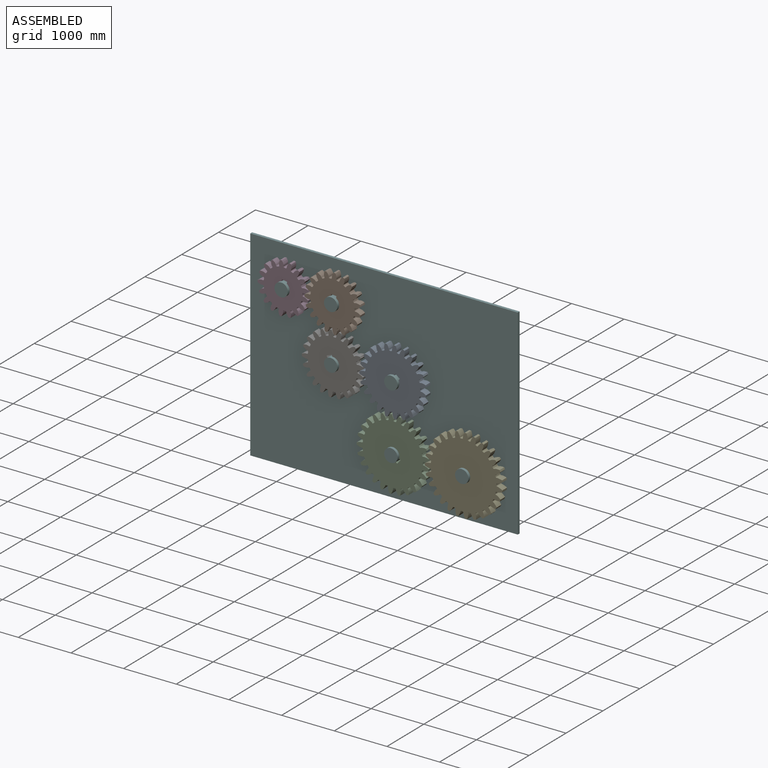
[diagram: assembled view]
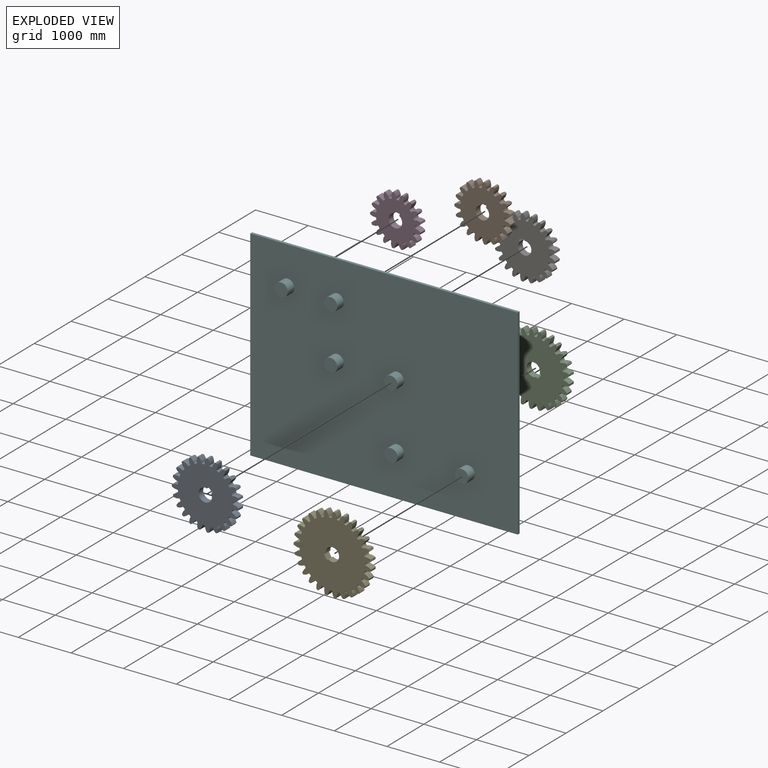
[diagram: exploded view]
GUIDED TOUR — MATED ASSEMBLY (Onshape document 5774c6cde4b05891d8816a00, AutoMate assembly 5774c6cde4b05891d8816a00_759ea697c75225c38b6fd69d_c1f17642f7555de73bb419a1_default)

This assembly has 7 components, labeled P0..P6 below (a component is one placed occurrence of a part; the same part can appear more than once), held together by 6 mates. A mate is a constraint between two components; its type names the relative motion it leaves free:
  REVOLUTE — leaves rotation about the listed axis free (a hinge).
Axis/direction vectors are unit vectors and 'through' points are millimeter coordinates, both in the assembly's world frame.

MATES
  1. REVOLUTE "Revolute 3": P5 <-> P4, axis (0.000, -1.000, 0.000) through (4372.71, -613.67, -982.83) mm
  2. REVOLUTE "Revolute 1": P5 <-> P1, axis (0.000, -1.000, 0.000) through (1883.51, -613.67, 1303.17) mm
  3. REVOLUTE "Revolute 2": P5 <-> P3, axis (0.000, -1.000, 0.000) through (943.71, -613.67, 1303.17) mm
  4. REVOLUTE "Revolute 4": P5 <-> P2, axis (0.000, -1.000, 0.000) through (3026.51, -613.67, -982.83) mm
  5. REVOLUTE "Revolute 5": P5 <-> P0, axis (0.000, -1.000, 0.000) through (3026.51, -613.67, 261.77) mm
  6. REVOLUTE "Revolute 6": P6 <-> P5, axis (0.000, 1.000, 0.000) through (1883.51, -613.67, 261.77) mm

ASSEMBLY ORDER
  1. P5 — the base component [order heuristic]
  2. P0 — core [order heuristic]
  3. P3 — core [order heuristic]
  4. P1 [order verified]
  5. P6 [order verified]
  6. P2 [order verified]
  7. P4 [order verified]
(P1, P2, P6 verified with a relaxed clearance tolerance: the source model stores slight part interference there.)
Order-tag legend:
  [order verified] — this step's position reverses a verified removal order: the component was checked to insert without passing through the ones already placed.
  [order heuristic] — the first 3 components form the assembly's core: parts whose collision-free extraction could not be verified, listed in mate-graph order.

Of the 7 components, 1 carries the full construction recipe — the FeatureScript program that regenerates the part's solid from scratch; the rest are supplied as boundary geometry only.
Each toured component is shown spotlighted twice — in the assembled view, then in the exploded view, where a leader line traces a displaced component back to its assembled socket (saturated green if recipe-attached, orange if geometry-only; every other component desaturated gray) — followed by its recipe or geometry summary and the mates that hold it.
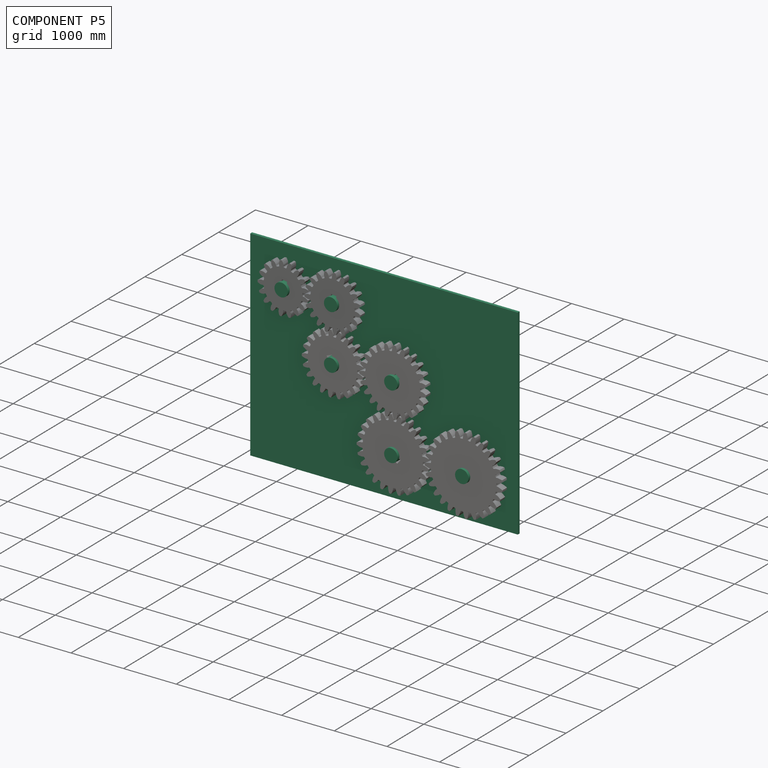
[diagram: component P5 — assembled]
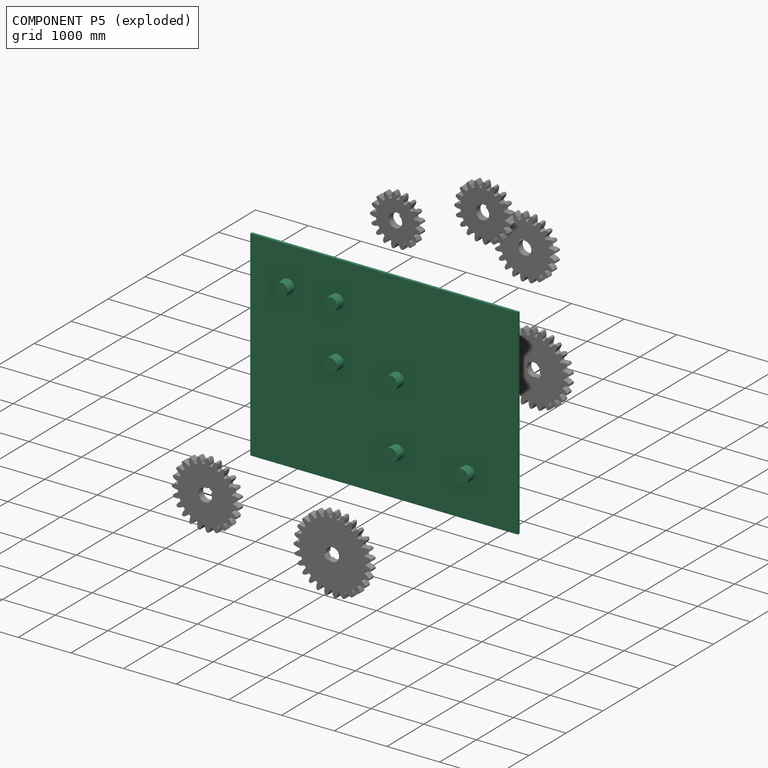
[diagram: component P5 — exploded]
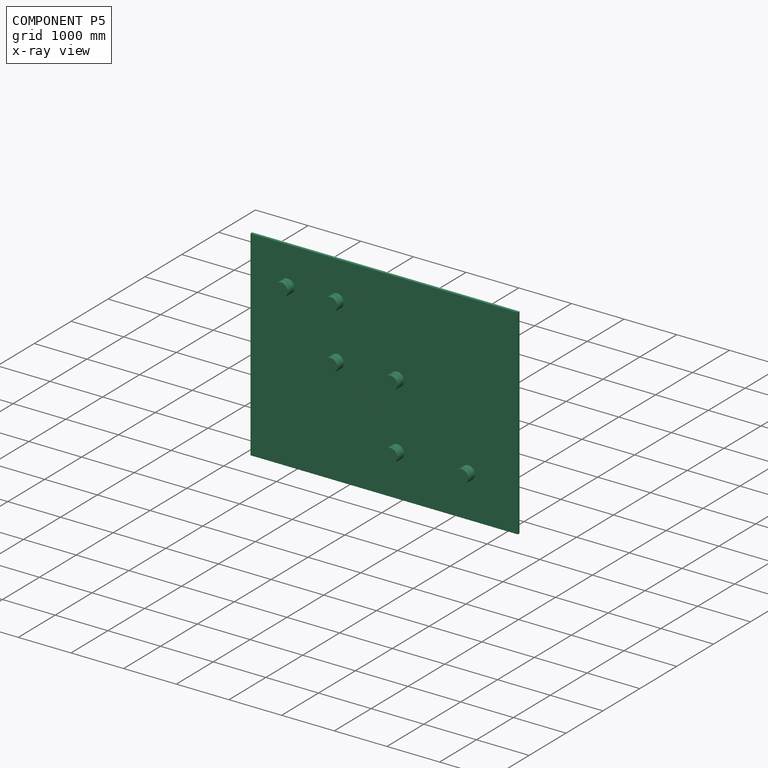
[diagram: component P5 — x-ray view]
COMPONENT P5 — recipe-attached (CADFS 00182782, mesh-verified: the recipe's output STEP matches this component's geometry to below the mesh-comparison resolution (tessellation chordal tolerance ~9.53 mm)).
Held by: REVOLUTE mate "Revolute 3" to P4; REVOLUTE mate "Revolute 1" to P1; REVOLUTE mate "Revolute 2" to P3; REVOLUTE mate "Revolute 4" to P2; REVOLUTE mate "Revolute 5" to P0; REVOLUTE mate "Revolute 6" to P6.
Construction recipe (FeatureScript — the CAD program that rebuilds this solid; sketch coordinates are in the units given by the * unit suffixes, e.g. mm):

FeatureScript 1511;
import(path : "onshape/std/geometry.fs", version : "1511.0");
import(path : "onshape/std/common.fs", version : "1511.0");
const mm = millimeter;
const VERTEX = EntityType.VERTEX;
const EDGE = EntityType.EDGE;
const FACE = EntityType.FACE;
const BODY = EntityType.BODY;
function v(x, y){return vector(x, y);}
function OD(order){return orderDisambiguation(order);}
function OSD(set){return originalSetDisambiguation(set);}
function TD(topology){return topologyDisambiguation(topology);}
function TDD(query){return trueDependencyDisambiguation(query);}
function sQuery(a, b, c) {return sketchEntityQuery(a, b, c);}

annotation { "Feature Type Name" : "Feature", "Feature Type Description" : "" }
export const myFeature = defineFeature(function(context is Context, id is Id, definition is map)
    precondition{}
    {
        {
            var Q0;
            Q0=qCreatedBy(makeId("Front.planeOp"),FACE);
            var sketch = newSketch(context, id + "F0", { "sketchPlane" : qUnion([Q0])});
            skLineSegment(sketch, "E0.bottom", {"start": v(-126.06, 3694.01) * mm, "end": v(4953.94, 3694.01) * mm});
            skLineSegment(sketch, "E0.top", {"start": v(-126.06, -115.99) * mm, "end": v(4953.94, -115.99) * mm});
            skLineSegment(sketch, "E0.left", {"start": v(-126.06, 3694.01) * mm, "end": v(-126.06, -115.99) * mm});
            skLineSegment(sketch, "E0.right", {"start": v(4953.94, 3694.01) * mm, "end": v(4953.94, -115.99) * mm});
            skSolve(sketch);
        }
        {
            var Q0;
            Q0=makeQuery(id+"F0.imprint","IMPRINT",FACE,{"disambiguationData":[TD([[makeQuery(id+"F0.imprint","IMPRINT",EDGE,{"derivedFrom":sQuery(id+"F0.wireOp",EDGE,"E0.bottom")}),-1.0]])]});
            extrude(context, id + "F1", {"entities" : qUnion([Q0]), "depth" : 50.8 * mm});
        }
        {
            var Q0;
            Q0=makeQuery(id+"F1.opExtrude","CAP_FACE",FACE,{"disambiguationData":[OSD([sQuery(id+"F0.wireOp",EDGE,"E0.bottom"),sQuery(id+"F0.wireOp",EDGE,"E0.top"),sQuery(id+"F0.wireOp",EDGE,"E0.left"),sQuery(id+"F0.wireOp",EDGE,"E0.right")])],"isStart":false});
            var sketch = newSketch(context, id + "F2", { "sketchPlane" : qUnion([Q0])});
            skCircle(sketch, "E1", {"center": v(585.14, 2982.81) * mm, "radius": 127 * mm});
            skCircle(sketch, "E2", {"center": v(1524.94, 2982.81) * mm, "radius": 127 * mm});
            skCircle(sketch, "E3", {"center": v(1524.94, 1941.41) * mm, "radius": 127 * mm});
            skCircle(sketch, "E4", {"center": v(2667.94, 1941.41) * mm, "radius": 127 * mm});
            skCircle(sketch, "E5", {"center": v(2667.94, 696.81) * mm, "radius": 127 * mm});
            skCircle(sketch, "E6", {"center": v(4014.14, 696.81) * mm, "radius": 127 * mm});
            skSolve(sketch);
        }
        {
            var Q0;
            Q0 = qSketchRegion(id + "F2", true);
            extrude(context, id + "F3", {"entities" : qUnion([Q0]), "operationType" : NewBodyOperationType.ADD, "depth" : 177.8 * mm});
        }
    });
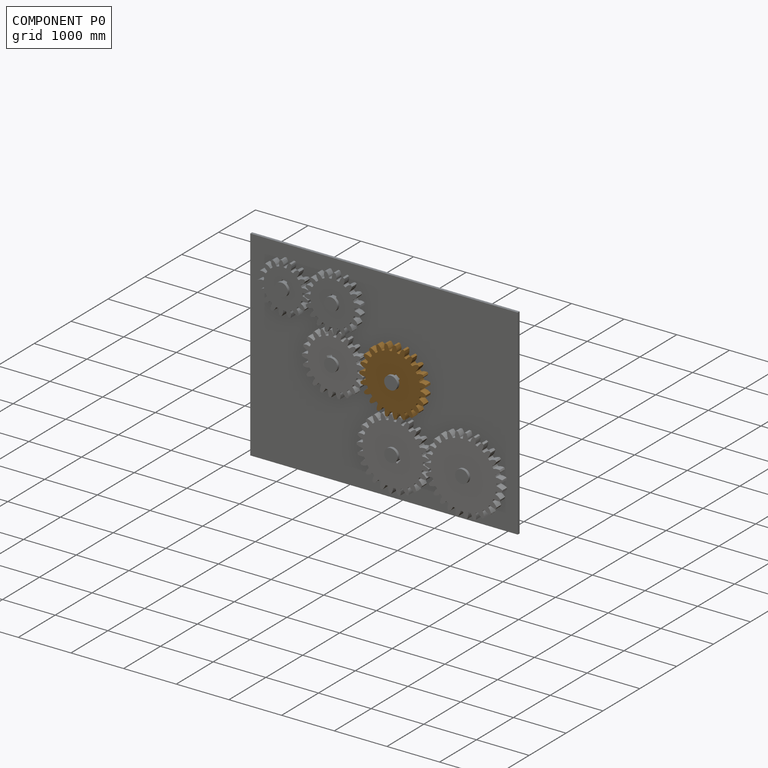
[diagram: component P0 — assembled]
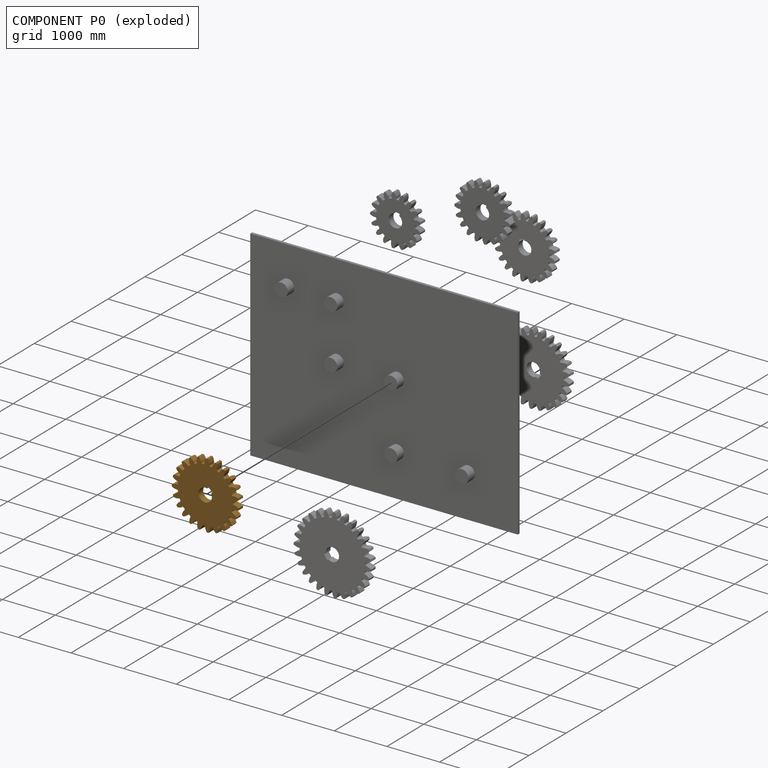
[diagram: component P0 — exploded]
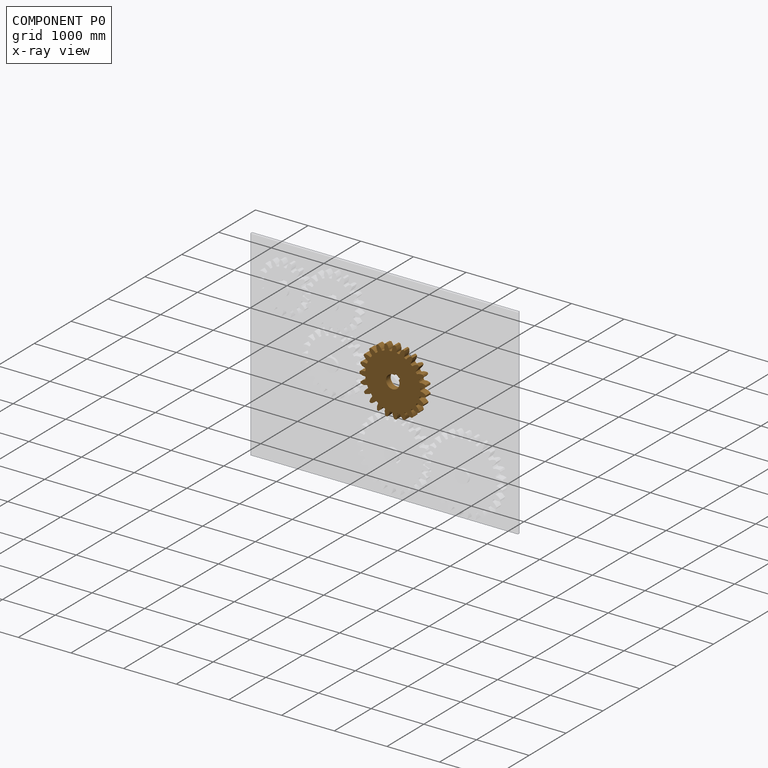
[diagram: component P0 — x-ray view]
COMPONENT P0 — geometry summary (no construction recipe available for this part):
  bounding box: 1269.5 x 1266.5 x 127.0 mm
  B-rep topology: 1 solid, 144 faces, 852 edges
  volume: 127045199 mm^3 (62% of its bounding box)
  symmetry: mirror-symmetric across its y mid-plane
Held by: REVOLUTE mate "Revolute 5" to P5.
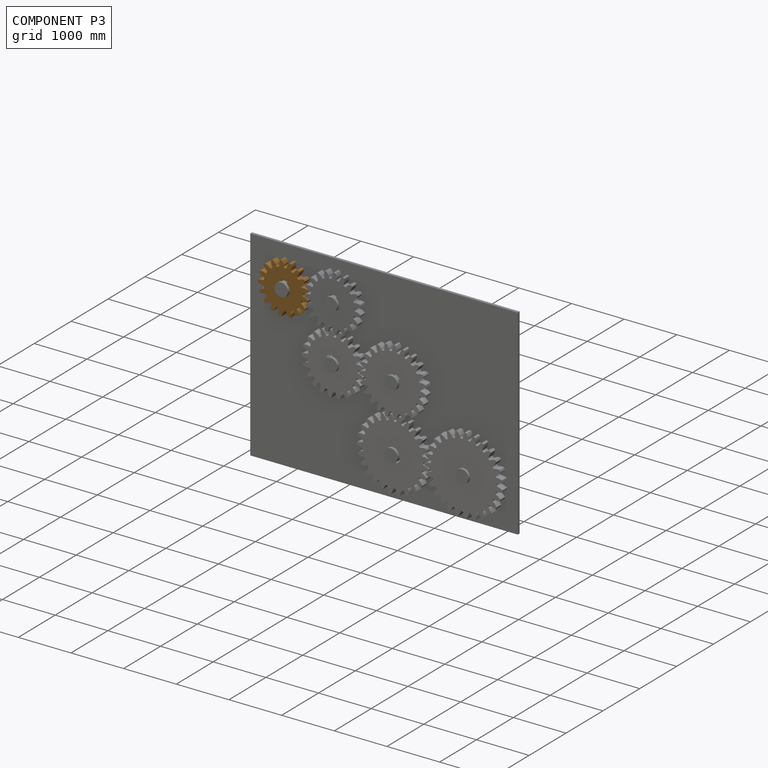
[diagram: component P3 — assembled]
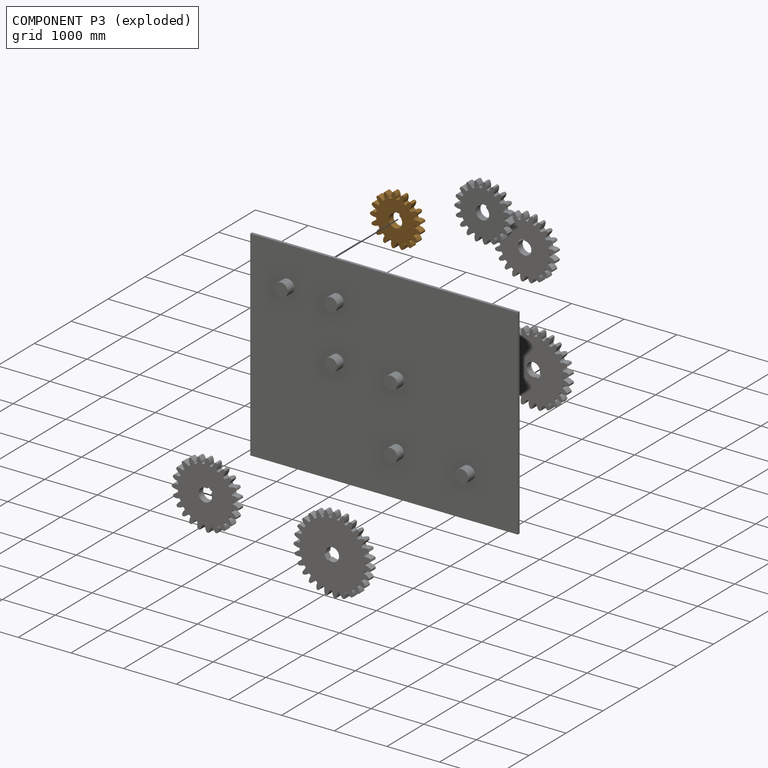
[diagram: component P3 — exploded]
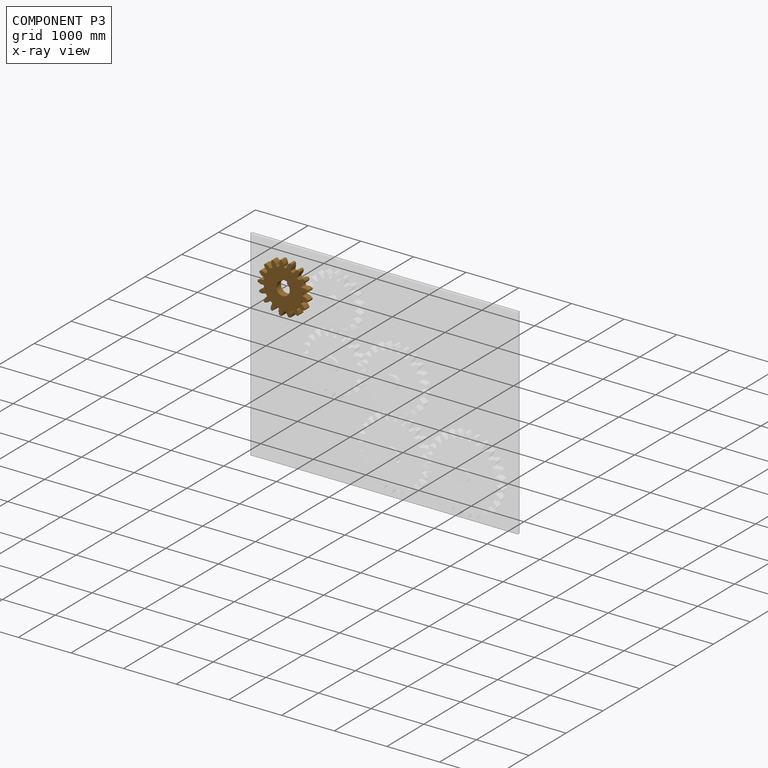
[diagram: component P3 — x-ray view]
COMPONENT P3 — geometry summary (no construction recipe available for this part):
  bounding box: 964.8 x 960.7 x 127.0 mm
  B-rep topology: 1 solid, 108 faces, 636 edges
  volume: 65678807 mm^3 (56% of its bounding box)
  symmetry: mirror-symmetric across its y mid-plane
Held by: REVOLUTE mate "Revolute 2" to P5.
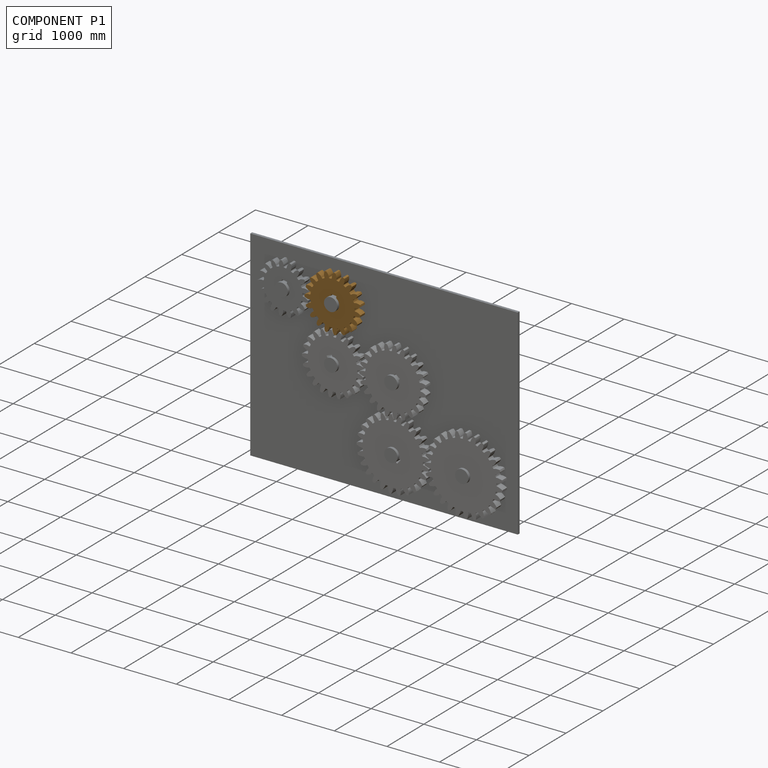
[diagram: component P1 — assembled]
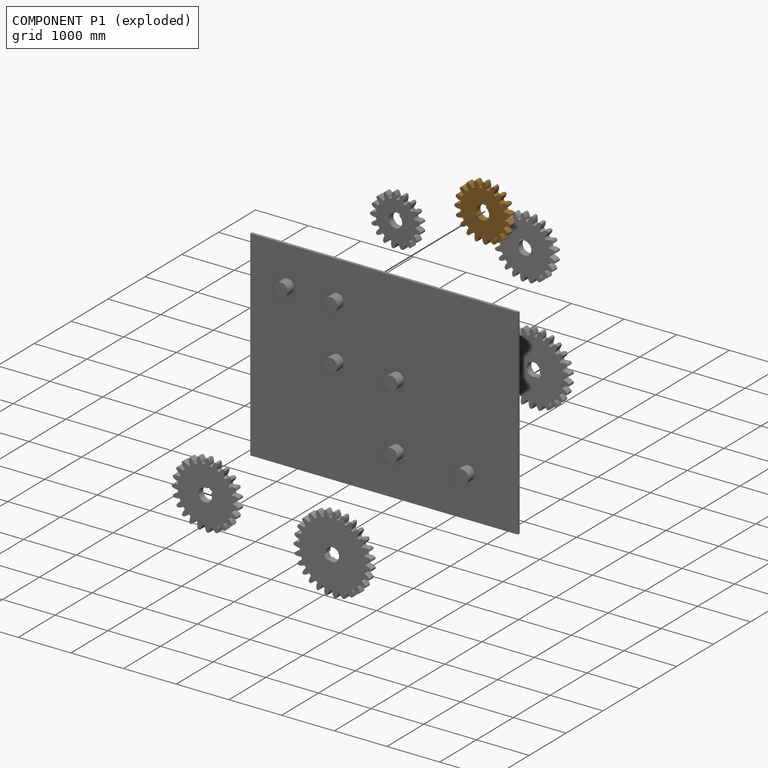
[diagram: component P1 — exploded]
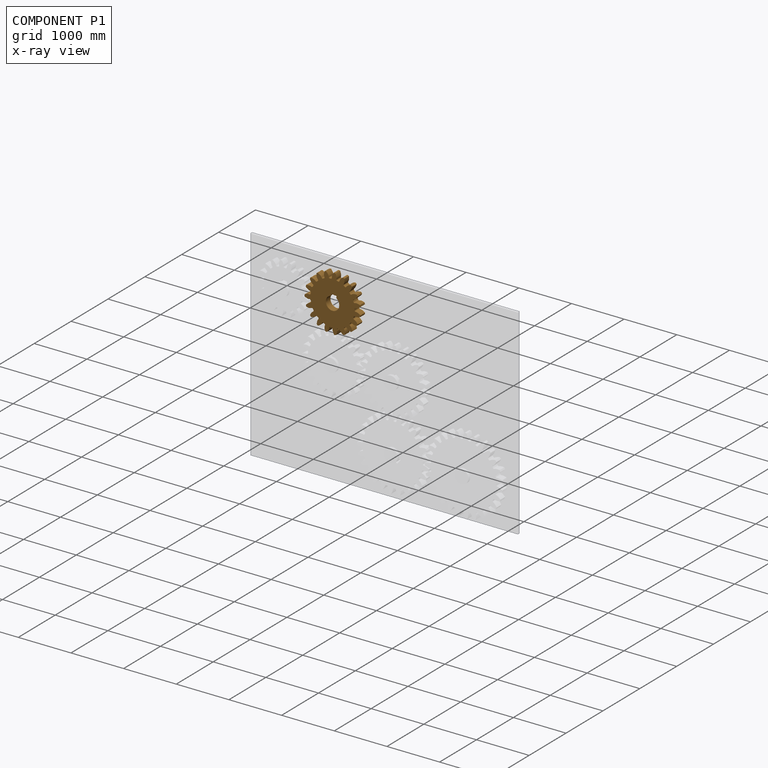
[diagram: component P1 — x-ray view]
COMPONENT P1 — geometry summary (no construction recipe available for this part):
  bounding box: 1066.4 x 1062.7 x 127.0 mm
  B-rep topology: 1 solid, 120 faces, 708 edges
  volume: 84059613 mm^3 (58% of its bounding box)
  symmetry: mirror-symmetric across its y mid-plane
Held by: REVOLUTE mate "Revolute 1" to P5.
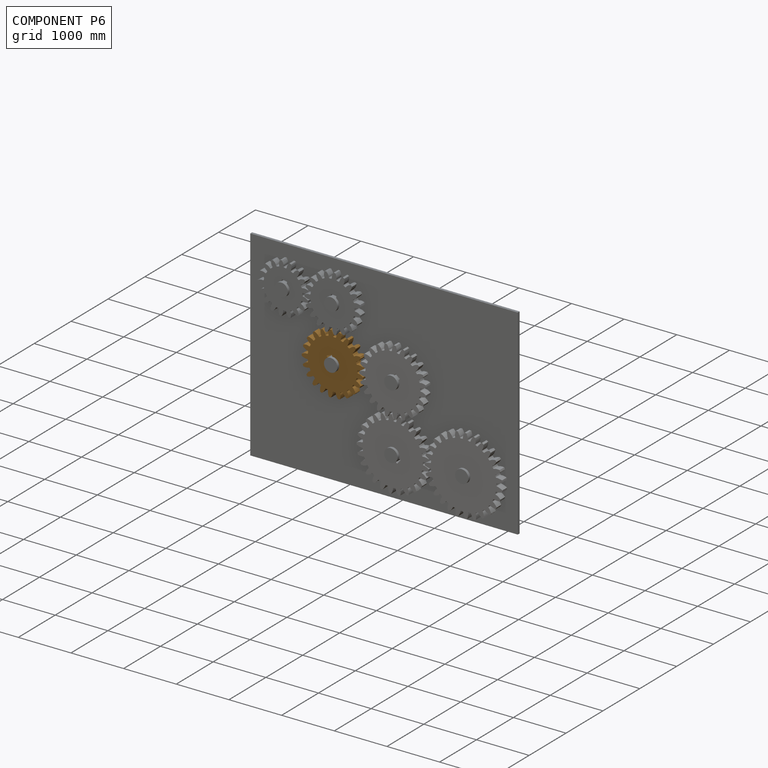
[diagram: component P6 — assembled]
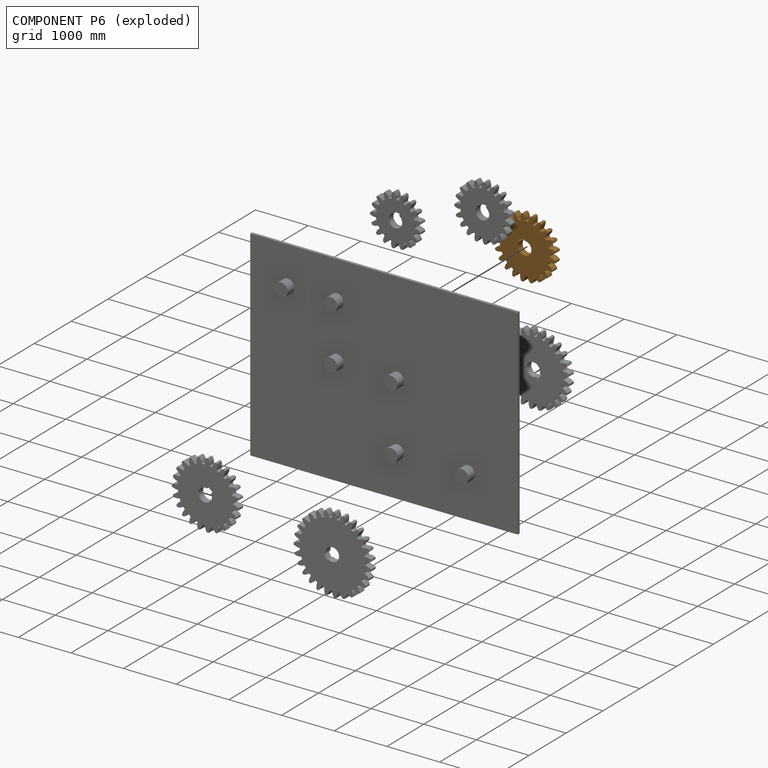
[diagram: component P6 — exploded]
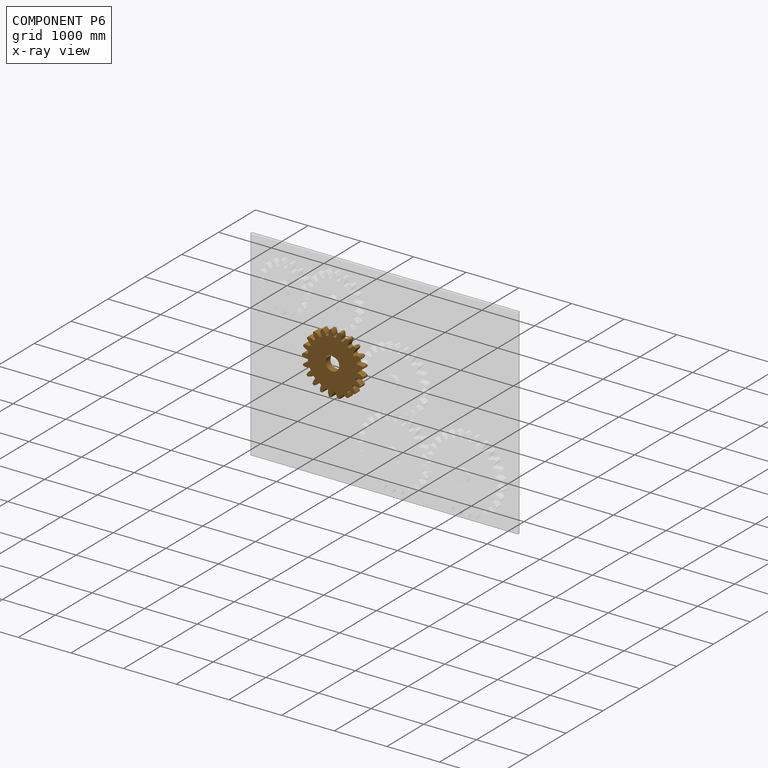
[diagram: component P6 — x-ray view]
COMPONENT P6 — geometry summary (no construction recipe available for this part):
  bounding box: 1167.9 x 1164.6 x 127.0 mm
  B-rep topology: 1 solid, 132 faces, 780 edges
  volume: 104514826 mm^3 (61% of its bounding box)
  symmetry: mirror-symmetric across its y mid-plane
Held by: REVOLUTE mate "Revolute 6" to P5.
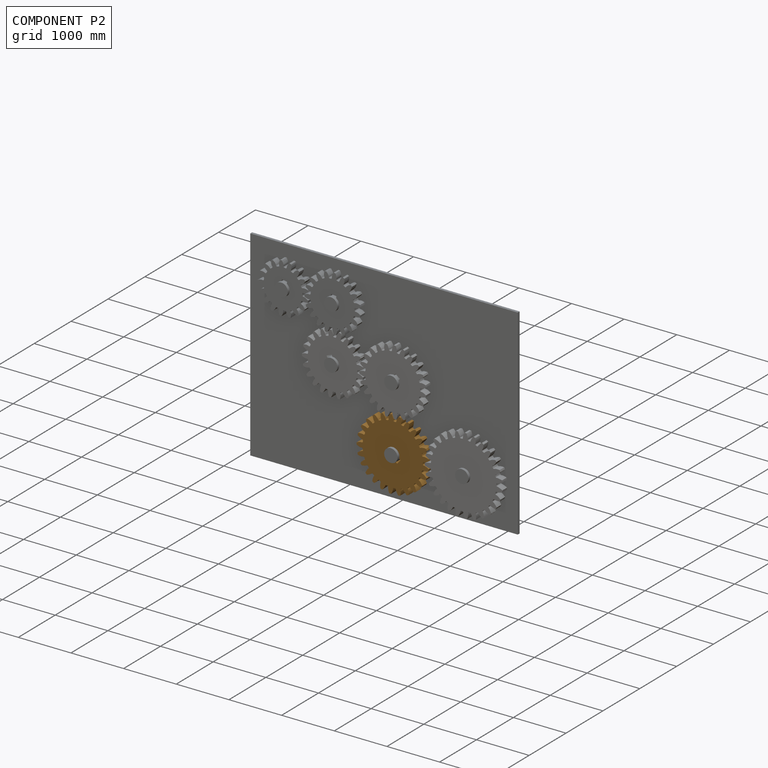
[diagram: component P2 — assembled]
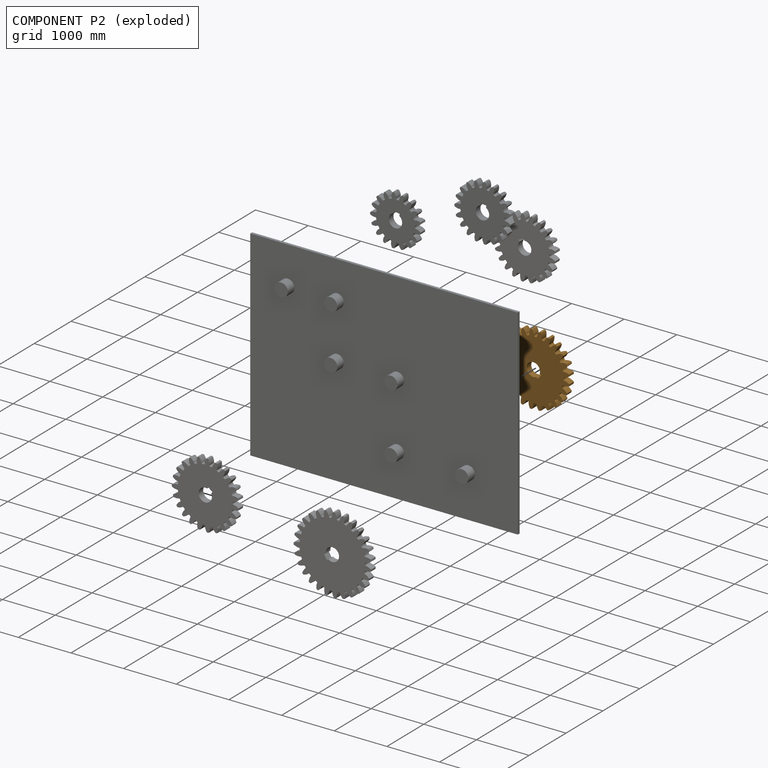
[diagram: component P2 — exploded]
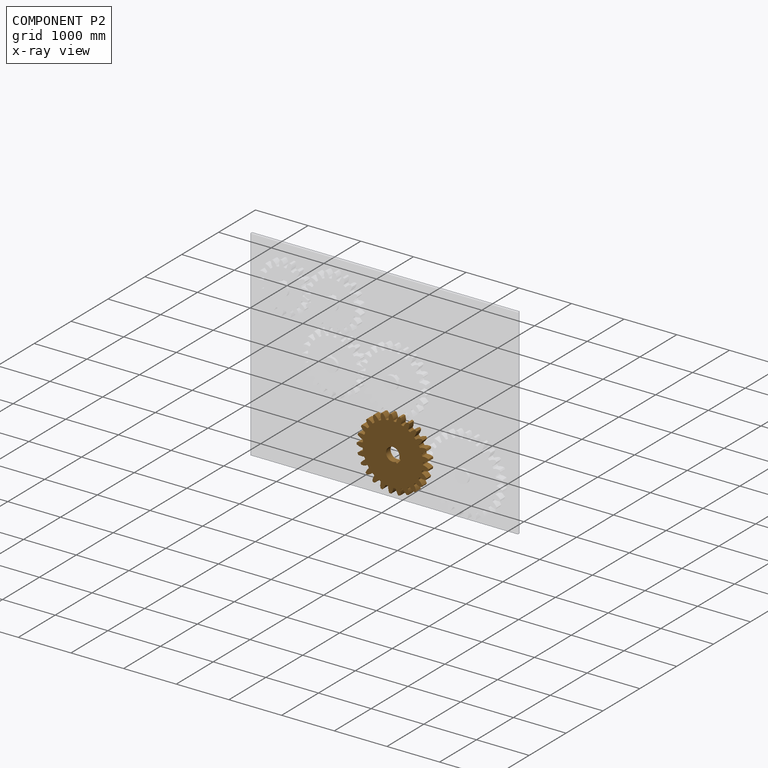
[diagram: component P2 — x-ray view]
COMPONENT P2 — geometry summary (no construction recipe available for this part):
  bounding box: 1371.0 x 1368.4 x 127.0 mm
  B-rep topology: 1 solid, 156 faces, 924 edges
  volume: 151648119 mm^3 (64% of its bounding box)
  symmetry: mirror-symmetric across its y mid-plane
Held by: REVOLUTE mate "Revolute 4" to P5.
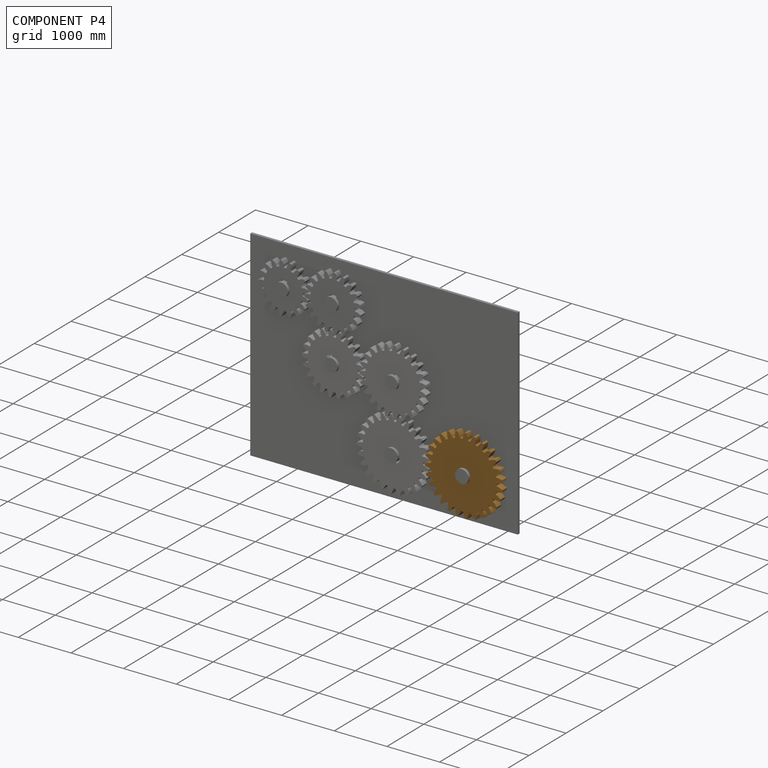
[diagram: component P4 — assembled]
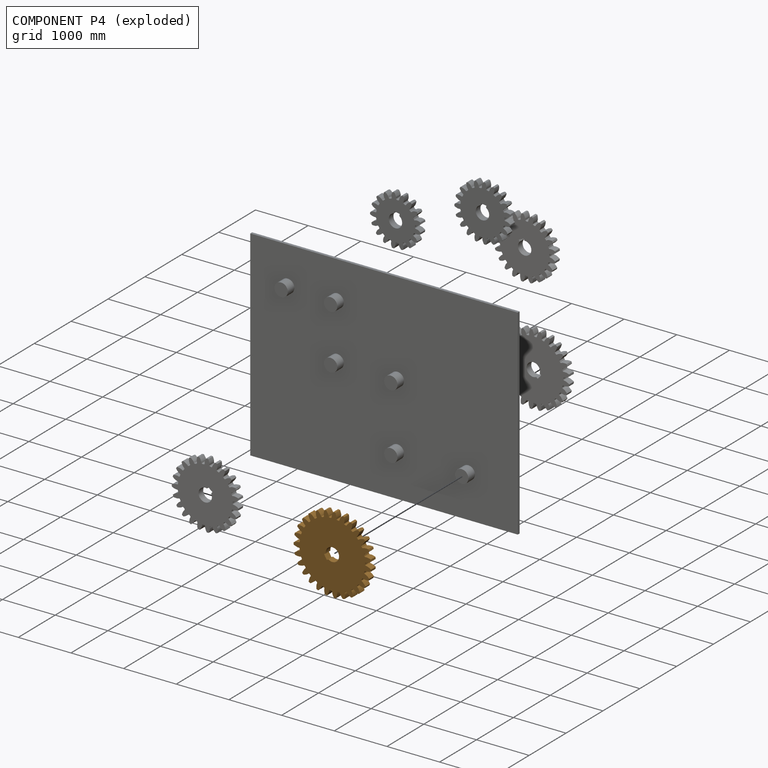
[diagram: component P4 — exploded]
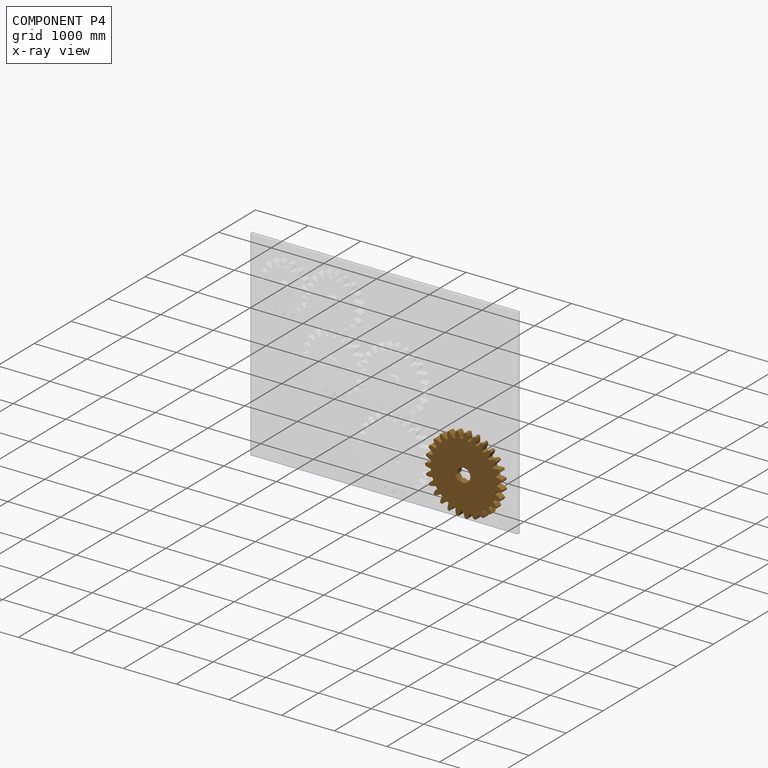
[diagram: component P4 — x-ray view]
COMPONENT P4 — geometry summary (no construction recipe available for this part):
  bounding box: 1472.6 x 1470.2 x 127.0 mm
  B-rep topology: 1 solid, 168 faces, 996 edges
  volume: 178324527 mm^3 (65% of its bounding box)
  symmetry: mirror-symmetric across its y mid-plane
Held by: REVOLUTE mate "Revolute 3" to P5.
PROVENANCE & LICENSES
Assembly (occurrences, transforms, mates, per-part STEP geometry): AutoMate dataset, Zenodo record 7776208, CC0.
Construction recipes: CADFS (HuggingFace VladPyatov/CADFS, CC-BY-4.0, layered over the ABC dataset), FeatureScript reconstruction programs keyed by ABC model id.
Join: ABC meta listings map ABC model id -> Onshape documentId; within a shared document, parts are matched by geometric signature (bounding-box dims + volume at 0.1% relative tolerance, exact B-rep face/solid counts).
Verification: 1 of this assembly's 7 components carries a recipe attachment, and every attachment is mesh-verified: the CADFS STEP and the AutoMate member STEP were compared as meshes in their shared local frame (symmetric sampled-point-to-mesh distance); worst across the 1 attachment: below the mesh-comparison resolution (tessellation chordal tolerance ~9.53 mm) on a 6354 mm part.
Renders: orthographic iso camera (az 35 / el 25); the floor grid conveys scale (grid pitch printed in each image; no ruler). In the exploded view each component is displaced by its stored offset vector: the offsets alone carry the explosion direction (mate normal/axis signs are not orientation cues and do not encode it), and separation distances are assigned per mate-chain, not proportionally to assembly-order depth.
